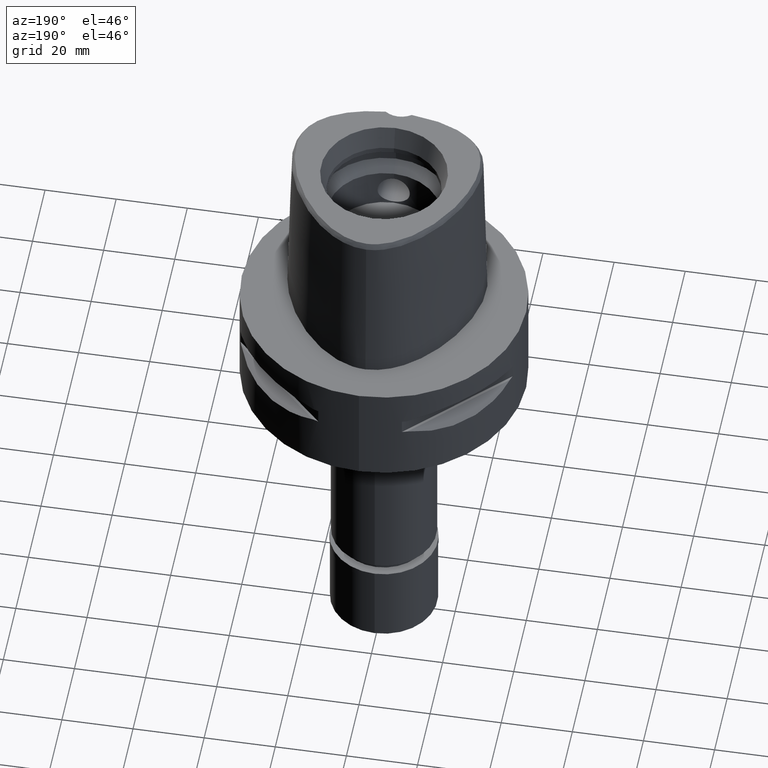
[diagram: clean part render]
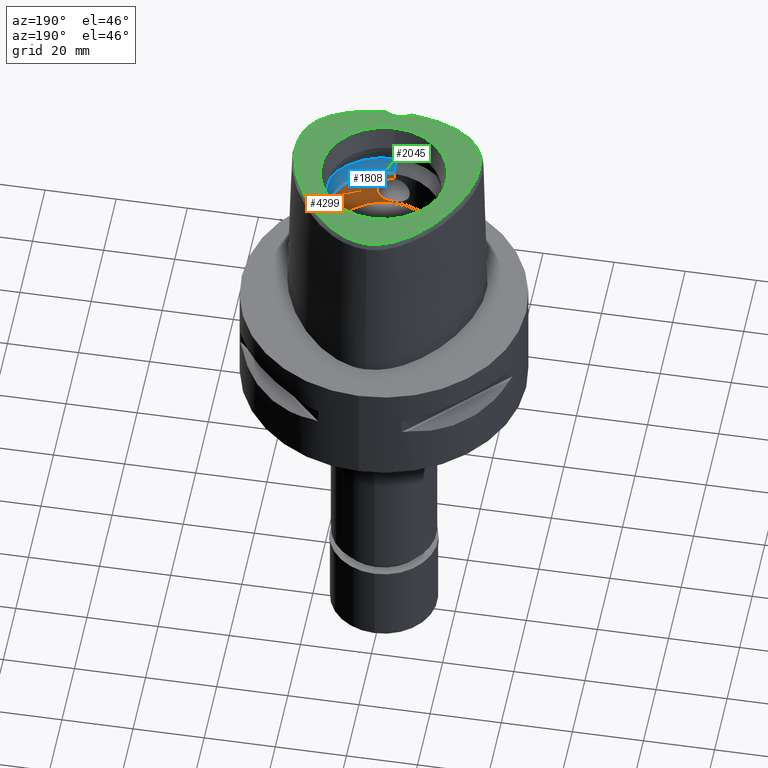
[diagram: same view with three faces highlighted in distinct colors, each labeled with its STEP entity id]
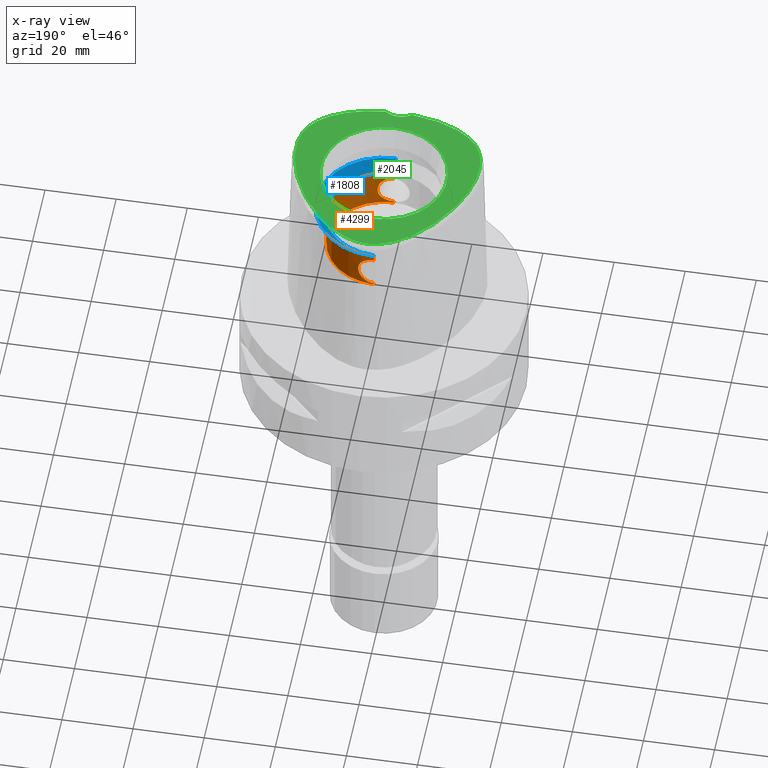
[diagram: x-ray of the same camera — body ghosted, the three highlighted faces saturated]
A machine part, auxiliary view with three faces highlighted in distinct colors.
The next image is the same camera in x-ray (body ghosted, the three faces saturated) — at least one of them is partly hidden behind the body in this view.
Their STEP definitions:

[orange] entity #4299 — the highlighted cylindrical surface (partial cylindrical patch) has radius 16 mm, axis along (0, 0, -1).
#17 = CARTESIAN_POINT ( 'NONE',  ( 4.189656546178186503, 15.44187136844729835, 23.22535852732936590 ) ) ;
#19 = CARTESIAN_POINT ( 'NONE',  ( 3.866437423689760067, -15.52606563446505383, 27.40429148412047056 ) ) ;
#30 = CARTESIAN_POINT ( 'NONE',  ( 3.649470479182351124, 15.57840939008606185, 22.28201629146690976 ) ) ;
#42 = CARTESIAN_POINT ( 'NONE',  ( 2.962143270709701959, 15.72368415002362774, 28.45703030326751914 ) ) ;
#45 = CARTESIAN_POINT ( 'NONE',  ( 1.912207018179929774, -15.88647873231247409, 29.13410031185300042 ) ) ;
#98 = CARTESIAN_POINT ( 'NONE',  ( 1.794211577386909173, -15.89895019350959515, 20.81863176061057530 ) ) ;
#122 = CARTESIAN_POINT ( 'NONE',  ( 3.303400809865709498, -15.65543729917632376, 21.86952368833759053 ) ) ;
#147 = CARTESIAN_POINT ( 'NONE',  ( 1.754045412216836075, -15.90341773696171401, 20.80167885171940156 ) ) ;
#158 = EDGE_CURVE ( 'NONE', #1083, #3416, #4061, .T. ) ;
#168 = CARTESIAN_POINT ( 'NONE',  ( 2.962116243582476383, -15.72368917182755510, 21.54294647201987800 ) ) ;
#173 = VERTEX_POINT ( 'NONE', #2833 ) ;
#194 = CARTESIAN_POINT ( 'NONE',  ( 3.369125265877832565, -15.64144421129965856, 21.94071229641686216 ) ) ;
#289 = CARTESIAN_POINT ( 'NONE',  ( 2.523274598537063707, 15.79903356793057867, 21.21083401355727460 ) ) ;
#297 = LINE ( 'NONE', #3371, #3078 ) ;
#329 = CARTESIAN_POINT ( 'NONE',  ( 4.053985978798844592, 15.47807549748950606, 22.93277328934321346 ) ) ;
#331 = VERTEX_POINT ( 'NONE', #3070 ) ;
#339 = CARTESIAN_POINT ( 'NONE',  ( 0.2782013015967914060, 16.00000000000000711, 20.44999999999999929 ) ) ;
#353 = CARTESIAN_POINT ( 'NONE',  ( 1.159190779532319526, 15.96838977935147241, 29.44422320749352195 ) ) ;
#355 = CARTESIAN_POINT ( 'NONE',  ( 4.442108612069406881, 15.37148708700024358, 25.99587535441274611 ) ) ;
#359 = CARTESIAN_POINT ( 'NONE',  ( 0.2782053161998652713, -16.00000000000000000, 29.55000000000000782 ) ) ;
#378 = CARTESIAN_POINT ( 'NONE',  ( 0.5625441145297881418, 16.00000000000000355, 29.54999999999999716 ) ) ;
#379 = CARTESIAN_POINT ( 'NONE',  ( 4.215499819405168047, 15.43479043457173283, 26.71234694426702916 ) ) ;
#381 = CARTESIAN_POINT ( 'NONE',  ( 3.608925105162051228, -15.58793851878025549, 27.77197051437914155 ) ) ;
#390 = CARTESIAN_POINT ( 'NONE',  ( 1.912179651897611077, 15.88648207706449789, 20.86588705029586777 ) ) ;
#399 = CARTESIAN_POINT ( 'NONE',  ( 0.0000000000000000000, 16.00000000000000000, 20.00000000000000000 ) ) ;
#405 = CARTESIAN_POINT ( 'NONE',  ( 2.541157522327708307, 15.79692219589786539, 28.77425877510762575 ) ) ;
#407 = CARTESIAN_POINT ( 'NONE',  ( 1.713069719687039472, -15.90795114070365734, 29.21519905557675045 ) ) ;
#410 = LINE ( 'NONE', #3538, #1942 ) ;
#415 = CARTESIAN_POINT ( 'NONE',  ( 3.608926498398997484, 15.58793843905590037, 22.22803121313303265 ) ) ;
#428 = CARTESIAN_POINT ( 'NONE',  ( 4.155135374964909367, 15.45121126152381308, 23.14540970916084817 ) ) ;
#431 = CARTESIAN_POINT ( 'NONE',  ( 1.357209790509098291, -15.94226299747448650, 29.34351668574365135 ) ) ;
#435 = EDGE_CURVE ( 'NONE', #4090, #331, #2747, .T. ) ;
#455 = CARTESIAN_POINT ( 'NONE',  ( 3.751169547981506813, -15.55403617229850610, 27.57516546894511578 ) ) ;
#483 = CARTESIAN_POINT ( 'NONE',  ( 4.524610095706539603, -15.34742685073815949, 24.43716217433382454 ) ) ;
#506 = CARTESIAN_POINT ( 'NONE',  ( 4.215492713729362961, -15.43479194653274078, 23.28763556495989206 ) ) ;
#528 = CARTESIAN_POINT ( 'NONE',  ( 2.541124487639813800, -15.79692748425804893, 21.22571898328422080 ) ) ;
#556 = CARTESIAN_POINT ( 'NONE',  ( 4.161423080045494771, -15.44954601841345898, 23.15522980018027965 ) ) ;
#578 = CARTESIAN_POINT ( 'NONE',  ( 1.997936047060144382, -15.87476822621945338, 20.91148056798598276 ) ) ;
#687 = EDGE_CURVE ( 'NONE', #3438, #173, #297, .T. ) ;
#737 = CARTESIAN_POINT ( 'NONE',  ( 4.161428030123373922, 15.44954512553541726, 26.84475952259135667 ) ) ;
#740 = CARTESIAN_POINT ( 'NONE',  ( 3.079092618712816254, -15.70089896345050740, 28.35045023974367595 ) ) ;
#761 = CARTESIAN_POINT ( 'NONE',  ( 0.0000000000000000000, -16.00000000000000000, 29.55000000000000071 ) ) ;
#762 = CARTESIAN_POINT ( 'NONE',  ( 3.744577833560327029, 15.55572763828316774, 27.58647462658780825 ) ) ;
#766 = CARTESIAN_POINT ( 'NONE',  ( 3.770760734124586566, -15.54928465812493776, 27.54634354338072910 ) ) ;
#786 = CARTESIAN_POINT ( 'NONE',  ( 1.899667195843307788, 15.88671723722100104, 29.13461902235320622 ) ) ;
#815 = CARTESIAN_POINT ( 'NONE',  ( 4.343082254756093441, 15.39956143003375644, 26.35862238567884219 ) ) ;
#817 = CARTESIAN_POINT ( 'NONE',  ( 0.5640746610351677903, -15.99230173299660152, 29.52441511484518699 ) ) ;
#837 = CARTESIAN_POINT ( 'NONE',  ( 4.199165497935947400, 15.43928784429265910, 23.24797072505772277 ) ) ;
#840 = CARTESIAN_POINT ( 'NONE',  ( 3.468490237217007888, -15.62005317892407419, 27.94868093617383309 ) ) ;
#860 = CARTESIAN_POINT ( 'NONE',  ( 2.785122922858078720, -15.75567992719716059, 21.40120808624280357 ) ) ;
#892 = CARTESIAN_POINT ( 'NONE',  ( 3.999411058300898603, -15.49220513063565896, 22.82912080816996081 ) ) ;
#908 = CARTESIAN_POINT ( 'NONE',  ( 0.0000000000000000000, 0.0000000000000000000, 31.50000000000000000 ) ) ;
#913 = CARTESIAN_POINT ( 'NONE',  ( 2.652222037722123726, -15.77860540324636851, 21.30280711229460522 ) ) ;
#920 = B_SPLINE_CURVE_WITH_KNOTS ( 'NONE', 3,
 ( #1552, #339, #1915, #1575, #3491, #1155, #5074, #3516, #1515, #3161, #2362, #4691, #3934, #390, #1131, #289, #1969, #4740, #1179, #2335, #2765, #4350, #1865, #3440, #5030, #1469, #3058, #415, #30, #1599, #3964, #1997, #3566, #3898, #3924, #2731, #4390, #1959, #2403, #329, #1536, #2323, #428, #4673, #17, #3149, #837, #1589, #1930, #3126, #4317, #2784, #1119, #1224, #4706, #355, #2379, #815, #1984, #2808, #3534, #3876, #4293, #379, #737, #4367, #3955, #2755, #3174, #1143, #3556, #3506, #5091, #3976, #1905, #762, #2352, #3095, #2011, #5119, #3581, #1194, #42, #3482, #1565, #4728, #1167, #5065, #1508, #2708, #405, #4340, #4753, #1617, #3198, #4784, #786, #1588, #2010, #2424, #5090, #1247, #353, #378, #1563 ),
 .UNSPECIFIED., .F., .F.,
 ( 4, 2, 2, 1, 1, 1, 1, 2, 2, 2, 2, 2, 1, 1, 2, 2, 2, 2, 1, 1, 1, 1, 2, 2, 2, 2, 1, 1, 2, 2, 2, 2, 2, 2, 2, 1, 1, 1, 2, 2, 2, 2, 1, 1, 1, 2, 2, 2, 2, 2, 2, 2, 1, 1, 1, 2, 2, 2, 2, 1, 1, 2, 2, 4 ),
 ( 0.0000000000000000000, 0.06249999999996654065, 0.09374999999994973465, 0.1093749999999412692, 0.1171874999999370781, 0.1210937499999349826, 0.1230468749999340111, 0.1240234374999335532, 0.1249999999999330813, 0.1874999999999101552, 0.2187499999998987477, 0.2343749999998929745, 0.2421874999998901712, 0.2460937499998887001, 0.2480468749998880063, 0.2499999999998872569, 0.2812499999998750999, 0.2968749999998689937, 0.3046874999998659961, 0.3085937499998644973, 0.3105468749998637756, 0.3115234374998638867, 0.3120117187498644418, 0.3124999999998649969, 0.3437499999998670508, 0.3593749999998683275, 0.3671874999998693823, 0.3710937499998695488, 0.3730468749998696043, 0.3749999999998696598, 0.4374999999998667732, 0.4687499999998652744, 0.4999999999998638867, 0.5624999999998610001, 0.5937499999998595568, 0.6093749999998592237, 0.6171874999998593347, 0.6210937499998597788, 0.6230468749998600009, 0.6249999999998601119, 0.6562499999998661071, 0.6718749999998686606, 0.6796874999998697708, 0.6835937499998703260, 0.6855468749998705480, 0.6865234374998711031, 0.6874999999998715472, 0.7187499999998830935, 0.7343749999998886446, 0.7499999999998940847, 0.7812499999999055200, 0.7968749999999111822, 0.8046874999999141798, 0.8085937499999159561, 0.8105468749999169553, 0.8115234374999170663, 0.8124999999999171774, 0.8437499999999279465, 0.8593749999999333866, 0.8671874999999360512, 0.8710937499999372724, 0.8730468749999379385, 0.8749999999999387157, 1.000000000000000000 ),
 .UNSPECIFIED. ) ;
#935 = CARTESIAN_POINT ( 'NONE',  ( 3.873230888526653093, -15.52414120514571039, 22.61183188858442961 ) ) ;
#961 = CARTESIAN_POINT ( 'NONE',  ( 0.0000000000000000000, 0.0000000000000000000, 50.39999999999999858 ) ) ;
#962 = CARTESIAN_POINT ( 'NONE',  ( 4.196349607670623705, -15.44005382475934596, 26.75875646608825420 ) ) ;
#987 = EDGE_CURVE ( 'NONE', #4090, #2000, #1899, .T. ) ;
#1003 = ORIENTED_EDGE ( 'NONE', *, *, #4575, .T. ) ;
#1024 = ORIENTED_EDGE ( 'NONE', *, *, #3526, .T. ) ;
#1083 = VERTEX_POINT ( 'NONE', #2749 ) ;
#1119 = CARTESIAN_POINT ( 'NONE',  ( 4.550015144519940158, 15.33941179770986984, 24.86210157583568048 ) ) ;
#1124 = CARTESIAN_POINT ( 'NONE',  ( 3.762791444921798512, -15.55121822179532565, 27.55811620603815015 ) ) ;
#1131 = CARTESIAN_POINT ( 'NONE',  ( 2.143374776122538350, 15.85669179824992447, 20.97542314536930874 ) ) ;
#1143 = CARTESIAN_POINT ( 'NONE',  ( 3.873231694624204025, 15.52414087639344409, 27.38816680141201587 ) ) ;
#1146 = CARTESIAN_POINT ( 'NONE',  ( 3.772428649167869352, -15.54887991101975686, 27.54387279360349794 ) ) ;
#1152 = ORIENTED_EDGE ( 'NONE', *, *, #1650, .T. ) ;
#1155 = CARTESIAN_POINT ( 'NONE',  ( 1.357188221007183060, 15.94226488405047704, 20.65647659800648483 ) ) ;
#1167 = CARTESIAN_POINT ( 'NONE',  ( 2.615076321123176673, 15.78484770968860396, 28.72361617527827704 ) ) ;
#1171 = CARTESIAN_POINT ( 'NONE',  ( 3.138951541086886454, -15.68906150299001823, 28.29400456614028059 ) ) ;
#1179 = CARTESIAN_POINT ( 'NONE',  ( 2.925371362859918722, 15.73002412702591890, 21.51389598532850655 ) ) ;
#1194 = CARTESIAN_POINT ( 'NONE',  ( 3.094079820521395519, 15.69862372471519940, 28.34193422348686298 ) ) ;
#1197 = CARTESIAN_POINT ( 'NONE',  ( 3.189316939968529052, -15.67891379177026323, 28.24514002014117864 ) ) ;
#1224 = CARTESIAN_POINT ( 'NONE',  ( 4.549969628939022570, 15.33940615444025646, 25.27729323598638089 ) ) ;
#1227 = CARTESIAN_POINT ( 'NONE',  ( 0.0000000000000000000, -16.00000000000000000, 29.55000000000000071 ) ) ;
#1247 = CARTESIAN_POINT ( 'NONE',  ( 1.747108114875768781, 15.90418151865913643, 29.20121518394913096 ) ) ;
#1251 = CARTESIAN_POINT ( 'NONE',  ( 0.0000000000000000000, -16.00000000000000000, 20.44999999999999929 ) ) ;
#1275 = CARTESIAN_POINT ( 'NONE',  ( 4.308072446258583099, -15.40933950963892940, 23.53257834518434777 ) ) ;
#1301 = CARTESIAN_POINT ( 'NONE',  ( 4.411054695673551684, -15.38060105774562025, 26.15499689250167492 ) ) ;
#1319 = DIRECTION ( 'NONE',  ( 0.0000000000000000000, 0.0000000000000000000, -1.000000000000000000 ) ) ;
#1321 = CARTESIAN_POINT ( 'NONE',  ( 3.903692605965634499, -15.51651355511180519, 22.66222515935153226 ) ) ;
#1346 = CARTESIAN_POINT ( 'NONE',  ( 4.189654095397577827, -15.44187240023541641, 26.77464726008378548 ) ) ;
#1469 = CARTESIAN_POINT ( 'NONE',  ( 3.349830735756511579, 15.64617010507494577, 21.91353457420719053 ) ) ;
#1508 = CARTESIAN_POINT ( 'NONE',  ( 2.554866899785636303, 15.79470913535774024, 28.76500105321615663 ) ) ;
#1515 = CARTESIAN_POINT ( 'NONE',  ( 1.653572333732379107, 15.91425433170309489, 20.76103257772965094 ) ) ;
#1536 = CARTESIAN_POINT ( 'NONE',  ( 4.086977290098439575, 15.46939710896591436, 22.99892130838378179 ) ) ;
#1552 = CARTESIAN_POINT ( 'NONE',  ( 0.0000000000000000000, 16.00000000000000000, 20.44999999999999929 ) ) ;
#1563 = CARTESIAN_POINT ( 'NONE',  ( 0.0000000000000000000, 16.00000000000000000, 29.55000000000000071 ) ) ;
#1565 = CARTESIAN_POINT ( 'NONE',  ( 2.729597290681040622, 15.76540486867777524, 28.64086068374010807 ) ) ;
#1569 = CARTESIAN_POINT ( 'NONE',  ( 4.053979410292590124, -15.47807741151256522, 27.06723962286901397 ) ) ;
#1575 = CARTESIAN_POINT ( 'NONE',  ( 0.9961926526049751374, 15.96920793816025608, 20.55797314716945934 ) ) ;
#1588 = CARTESIAN_POINT ( 'NONE',  ( 1.850775727679746518, 15.89250999642956330, 29.15683968798263948 ) ) ;
#1589 = CARTESIAN_POINT ( 'NONE',  ( 4.323958204503244751, 15.40531264616215168, 23.54890256027089279 ) ) ;
#1592 = CARTESIAN_POINT ( 'NONE',  ( 4.086971507871239417, -15.46939889150121239, 27.00109056301135269 ) ) ;
#1599 = CARTESIAN_POINT ( 'NONE',  ( 3.702056838117071980, 15.56588022015961137, 22.35459497960722075 ) ) ;
#1606 = EDGE_CURVE ( 'NONE', #2000, #3438, #920, .T. ) ;
#1617 = CARTESIAN_POINT ( 'NONE',  ( 2.264380261550365425, 15.83946175093809927, 28.94941747298992141 ) ) ;
#1648 = CARTESIAN_POINT ( 'NONE',  ( 1.140783603711200023, -15.95958409823213664, 29.40723668852184858 ) ) ;
#1650 = EDGE_CURVE ( 'NONE', #1083, #1869, #3580, .T. ) ;
#1672 = CARTESIAN_POINT ( 'NONE',  ( 4.179510492302597413, -15.44462419898545846, 26.79853223436298748 ) ) ;
#1694 = CARTESIAN_POINT ( 'NONE',  ( 4.155131648642695019, -15.45121261148693925, 26.85459867571130843 ) ) ;
#1722 = CARTESIAN_POINT ( 'NONE',  ( 4.516447097098074792, -15.34971033308157828, 25.57020538856895797 ) ) ;
#1746 = CARTESIAN_POINT ( 'NONE',  ( 4.550016828128999435, -15.33941121579257860, 25.13784116170331728 ) ) ;
#1865 = CARTESIAN_POINT ( 'NONE',  ( 3.164574645498917871, 15.68391565187350345, 21.73073258343147174 ) ) ;
#1869 = VERTEX_POINT ( 'NONE', #3266 ) ;
#1878 = CYLINDRICAL_SURFACE ( 'NONE', #4109, 16.00000000000000000 ) ;
#1899 = LINE ( 'NONE', #399, #3306 ) ;
#1905 = CARTESIAN_POINT ( 'NONE',  ( 3.799106346153691582, 15.54240362262474306, 27.50385701844249908 ) ) ;
#1915 = CARTESIAN_POINT ( 'NONE',  ( 0.5640661506413194859, 15.99230198454006491, 20.47558414519757974 ) ) ;
#1930 = CARTESIAN_POINT ( 'NONE',  ( 4.411048936297221168, 15.38060245814164340, 23.84498371928194516 ) ) ;
#1933 = CARTESIAN_POINT ( 'NONE',  ( 1.698278889583634488, -15.90953596541144144, 29.22118135015105622 ) ) ;
#1942 = VECTOR ( 'NONE', #3928, 1000.000000000000000 ) ;
#1959 = CARTESIAN_POINT ( 'NONE',  ( 3.866446441693441649, 15.52606353177364440, 22.59572289399530476 ) ) ;
#1962 = CARTESIAN_POINT ( 'NONE',  ( 3.768400076263710208, -15.54985749061531308, 27.54983819164340630 ) ) ;
#1969 = CARTESIAN_POINT ( 'NONE',  ( 2.655282872106861092, 15.77765202247453580, 21.30120896271615294 ) ) ;
#1984 = CARTESIAN_POINT ( 'NONE',  ( 4.308080894153779816, 15.40933754407856426, 26.46739704395423232 ) ) ;
#1988 = CARTESIAN_POINT ( 'NONE',  ( 2.925390830838976886, -15.73002061715234667, 28.48608766338562148 ) ) ;
#1997 = CARTESIAN_POINT ( 'NONE',  ( 3.751177014894234496, 15.55403459786074549, 22.42484540323997066 ) ) ;
#2000 = VERTEX_POINT ( 'NONE', #4412 ) ;
#2010 = CARTESIAN_POINT ( 'NONE',  ( 1.794241281059349546, 15.89894680430803042, 29.18135549407481477 ) ) ;
#2011 = CARTESIAN_POINT ( 'NONE',  ( 3.484927592812291142, 15.61614509033863207, 27.92669190149619141 ) ) ;
#2014 = CARTESIAN_POINT ( 'NONE',  ( 2.655305071339811196, -15.77764841890501302, 28.69877505775702886 ) ) ;
#2036 = CARTESIAN_POINT ( 'NONE',  ( 1.707207874312850260, -15.90858119987487918, 29.21757803147168886 ) ) ;
#2061 = CARTESIAN_POINT ( 'NONE',  ( 3.744574952021170411, -15.55572859468818514, 22.41352109307068119 ) ) ;
#2084 = CARTESIAN_POINT ( 'NONE',  ( 4.261969212491526271, -15.42206096146517957, 23.40603321981944518 ) ) ;
#2105 = CARTESIAN_POINT ( 'NONE',  ( 0.0000000000000000000, 0.0000000000000000000, 20.00000000000000000 ) ) ;
#2108 = CARTESIAN_POINT ( 'NONE',  ( 2.399866741051127406, -15.81961133751317838, 21.13090355243559770 ) ) ;
#2138 = CARTESIAN_POINT ( 'NONE',  ( 2.615044023700152653, -15.78485302017057457, 21.27636114073422036 ) ) ;
#2159 = DIRECTION ( 'NONE',  ( 0.0000000000000000000, -1.000000000000000000, 0.0000000000000000000 ) ) ;
#2160 = CARTESIAN_POINT ( 'NONE',  ( 1.850745930704452258, -15.89251350342059688, 20.84314704806012486 ) ) ;
#2228 = EDGE_LOOP ( 'NONE', ( #4843, #4192, #1024, #4611, #1152, #1003, #2649, #3790 ) ) ;
#2323 = CARTESIAN_POINT ( 'NONE',  ( 4.132994277957470430, 15.45714554145822817, 23.09680318323983172 ) ) ;
#2335 = CARTESIAN_POINT ( 'NONE',  ( 3.027778349938317515, 15.71074476490952421, 21.60336740777249176 ) ) ;
#2352 = CARTESIAN_POINT ( 'NONE',  ( 3.674615227646960136, 15.57277297764961865, 27.68737911627052029 ) ) ;
#2356 = CARTESIAN_POINT ( 'NONE',  ( 3.947479188499233071, -15.50564484584519143, 27.26777929395895583 ) ) ;
#2362 = CARTESIAN_POINT ( 'NONE',  ( 1.698251660413096387, 15.90953892135421555, 20.77880769513062731 ) ) ;
#2379 = CARTESIAN_POINT ( 'NONE',  ( 4.407204992253693554, 15.38151343653829706, 26.14101585880031919 ) ) ;
#2403 = CARTESIAN_POINT ( 'NONE',  ( 3.947487621378700684, 15.50564269361566616, 22.73223549783844177 ) ) ;
#2408 = CARTESIAN_POINT ( 'NONE',  ( 0.0000000000000000000, 16.00000000000000000, 29.55000000000000071 ) ) ;
#2424 = CARTESIAN_POINT ( 'NONE',  ( 1.770126022856088888, 15.90163656242777535, 29.19156648951770450 ) ) ;
#2451 = CARTESIAN_POINT ( 'NONE',  ( 3.816844945110818177, -15.53805976672804512, 22.52323341780981636 ) ) ;
#2481 = CARTESIAN_POINT ( 'NONE',  ( 3.835937387388080655, -15.53336594391269898, 22.55279966808718228 ) ) ;
#2502 = CARTESIAN_POINT ( 'NONE',  ( 4.543547489458577893, -15.34147157909059800, 25.28214318541009931 ) ) ;
#2521 = CARTESIAN_POINT ( 'NONE',  ( 2.574432664288141215, -15.79152938141080043, 21.24831721102748006 ) ) ;
#2549 = DIRECTION ( 'NONE',  ( 0.0000000000000000000, 0.0000000000000000000, -1.000000000000000000 ) ) ;
#2550 = CARTESIAN_POINT ( 'NONE',  ( 2.064158054777731177, -15.86631005045099840, 20.94445373429030255 ) ) ;
#2649 = ORIENTED_EDGE ( 'NONE', *, *, #687, .F. ) ;
#2704 = CIRCLE ( 'NONE', #3123, 16.00000000000000000 ) ;
#2708 = CARTESIAN_POINT ( 'NONE',  ( 2.546620738279579577, 15.79604134675055604, 28.77057471350508777 ) ) ;
#2712 = CARTESIAN_POINT ( 'NONE',  ( 2.523297973548863204, -15.79902995607773697, 28.78915039858805613 ) ) ;
#2731 = CARTESIAN_POINT ( 'NONE',  ( 3.772333376022444451, 15.54890324115859279, 22.45598686023981116 ) ) ;
#2733 = CARTESIAN_POINT ( 'NONE',  ( 1.465311484534525643, -15.93288073456408682, 29.30877354142927160 ) ) ;
#2747 = CIRCLE ( 'NONE', #3167, 16.00000000000000000 ) ;
#2749 = CARTESIAN_POINT ( 'NONE',  ( 0.0000000000000000000, -16.00000000000000000, 29.55000000000000071 ) ) ;
#2755 = CARTESIAN_POINT ( 'NONE',  ( 3.962677025106232431, 15.50163036113120718, 27.23734653533288252 ) ) ;
#2756 = CARTESIAN_POINT ( 'NONE',  ( 0.0000000000000000000, 16.00000000000000000, 20.00000000000000000 ) ) ;
#2765 = CARTESIAN_POINT ( 'NONE',  ( 3.079074847965816097, 15.70090238366231361, 21.64953342140152870 ) ) ;
#2784 = CARTESIAN_POINT ( 'NONE',  ( 4.543544356695304209, 15.34147259334892155, 24.71780853530669120 ) ) ;
#2808 = CARTESIAN_POINT ( 'NONE',  ( 4.261977044492797795, 15.42205921573411409, 26.59394588462530962 ) ) ;
#2810 = CARTESIAN_POINT ( 'NONE',  ( 3.027796695002154870, -15.71074131266799512, 28.39661623549461922 ) ) ;
#2816 = CARTESIAN_POINT ( 'NONE',  ( 1.653598826364421015, -15.91425152984297497, 29.23895709059885206 ) ) ;
#2833 = CARTESIAN_POINT ( 'NONE',  ( 0.0000000000000000000, 16.00000000000000000, 31.50000000000000000 ) ) ;
#2862 = CARTESIAN_POINT ( 'NONE',  ( 3.536504641778518199, -15.60453110585897107, 22.13622431585409345 ) ) ;
#2890 = CARTESIAN_POINT ( 'NONE',  ( 3.484915605471456068, -15.61614794292134967, 22.07329373984800824 ) ) ;
#2911 = CARTESIAN_POINT ( 'NONE',  ( 4.549966242427505136, -15.33940732230484905, 24.72265458136594418 ) ) ;
#2934 = CARTESIAN_POINT ( 'NONE',  ( 3.094055331838374112, -15.69862851482234767, 21.65804293900622568 ) ) ;
#3058 = CARTESIAN_POINT ( 'NONE',  ( 3.468485652279672316, 15.62005439302203946, 22.05131334578006985 ) ) ;
#3069 = FACE_OUTER_BOUND ( 'NONE', #2228, .T. ) ;
#3070 = CARTESIAN_POINT ( 'NONE',  ( 0.0000000000000000000, -16.00000000000000000, 20.00000000000000000 ) ) ;
#3078 = VECTOR ( 'NONE', #4234, 1000.000000000000000 ) ;
#3095 = CARTESIAN_POINT ( 'NONE',  ( 3.536514746485360128, 15.60452860933670216, 27.86376314389772446 ) ) ;
#3123 = AXIS2_PLACEMENT_3D ( 'NONE', #908, #4025, #4051 ) ;
#3126 = CARTESIAN_POINT ( 'NONE',  ( 4.495809259330163066, 15.35589036408810060, 24.28415928063268225 ) ) ;
#3130 = CARTESIAN_POINT ( 'NONE',  ( 3.702051490301241365, -15.56588124764121339, 27.64541248909067761 ) ) ;
#3149 = CARTESIAN_POINT ( 'NONE',  ( 4.196351796721544680, 15.44005286165201873, 23.24124875846293392 ) ) ;
#3161 = CARTESIAN_POINT ( 'NONE',  ( 1.684854944397863541, 15.91096538466819155, 20.77342622897208813 ) ) ;
#3167 = AXIS2_PLACEMENT_3D ( 'NONE', #2105, #1319, #4054 ) ;
#3174 = CARTESIAN_POINT ( 'NONE',  ( 3.903693436951860996, 15.51651326497629135, 27.33777345596545771 ) ) ;
#3176 = CARTESIAN_POINT ( 'NONE',  ( 4.132989838975941410, -15.45714704863348388, 26.90320647271984811 ) ) ;
#3198 = CARTESIAN_POINT ( 'NONE',  ( 2.064188499578045732, 15.86630605860837129, 29.05553078208316009 ) ) ;
#3201 = CARTESIAN_POINT ( 'NONE',  ( 3.181679688140317541, -15.68046259706548717, 28.25262301660179176 ) ) ;
#3223 = CARTESIAN_POINT ( 'NONE',  ( 1.747078318712492528, -15.90418482861359273, 20.79877242566698214 ) ) ;
#3248 = CARTESIAN_POINT ( 'NONE',  ( 4.343073568135321416, -15.39956351927398259, 23.64134995180632259 ) ) ;
#3266 = CARTESIAN_POINT ( 'NONE',  ( 0.0000000000000000000, -16.00000000000000000, 31.50000000000000000 ) ) ;
#3271 = CARTESIAN_POINT ( 'NONE',  ( 4.407196174932940913, -15.38151568681131565, 23.85895058721111894 ) ) ;
#3295 = CARTESIAN_POINT ( 'NONE',  ( 1.159171110711336050, -15.96839087129520429, 20.55577344022520236 ) ) ;
#3306 = VECTOR ( 'NONE', #3575, 1000.000000000000000 ) ;
#3317 = CARTESIAN_POINT ( 'NONE',  ( 4.219629281423143752, -15.43366229842522408, 23.29784757614652690 ) ) ;
#3371 = CARTESIAN_POINT ( 'NONE',  ( 0.0000000000000000000, 16.00000000000000000, 29.55000000000000071 ) ) ;
#3416 = VERTEX_POINT ( 'NONE', #3829 ) ;
#3438 = VERTEX_POINT ( 'NONE', #2408 ) ;
#3440 = CARTESIAN_POINT ( 'NONE',  ( 3.181663106844978994, 15.68046594130023763, 21.74736076354710335 ) ) ;
#3482 = CARTESIAN_POINT ( 'NONE',  ( 2.785152895743186363, 15.75567470001112547, 28.59876870134960569 ) ) ;
#3491 = CARTESIAN_POINT ( 'NONE',  ( 1.140765637915484909, 15.95958541883533321, 20.59275875371281828 ) ) ;
#3506 = CARTESIAN_POINT ( 'NONE',  ( 3.816846021525992949, 15.53805930982571581, 27.47676492289609484 ) ) ;
#3508 = CARTESIAN_POINT ( 'NONE',  ( 3.772324975477775677, -15.54890506713475240, 27.54402559623897773 ) ) ;
#3516 = CARTESIAN_POINT ( 'NONE',  ( 1.590917537191384623, 15.92067435631518535, 20.73689644766570694 ) ) ;
#3526 = EDGE_CURVE ( 'NONE', #331, #3416, #410, .T. ) ;
#3534 = CARTESIAN_POINT ( 'NONE',  ( 4.237594218959623404, 15.42874910287936707, 26.65709153774051998 ) ) ;
#3538 = CARTESIAN_POINT ( 'NONE',  ( 0.0000000000000000000, -16.00000000000000000, 20.00000000000000000 ) ) ;
#3556 = CARTESIAN_POINT ( 'NONE',  ( 3.835938342235793996, 15.53336553549570809, 27.44719883371852731 ) ) ;
#3559 = CARTESIAN_POINT ( 'NONE',  ( 3.349840423472021378, -15.64616789800078678, 28.08645433688232629 ) ) ;
#3566 = CARTESIAN_POINT ( 'NONE',  ( 3.762799422814133710, 15.55121651038781039, 22.44189552775758756 ) ) ;
#3575 = DIRECTION ( 'NONE',  ( 0.0000000000000000000, 0.0000000000000000000, 1.000000000000000000 ) ) ;
#3580 = LINE ( 'NONE', #761, #4102 ) ;
#3581 = CARTESIAN_POINT ( 'NONE',  ( 3.303420936129999763, 15.65543299877743344, 28.13045502941756126 ) ) ;
#3583 = CARTESIAN_POINT ( 'NONE',  ( 1.684881952930011639, -15.91096247533712749, 29.22656300514560357 ) ) ;
#3636 = CARTESIAN_POINT ( 'NONE',  ( 2.264348912107892797, -15.83946624511378687, 21.05056460264274421 ) ) ;
#3662 = CARTESIAN_POINT ( 'NONE',  ( 3.799105167258458149, -15.54240411986702242, 22.49614119270920654 ) ) ;
#3688 = CARTESIAN_POINT ( 'NONE',  ( 1.899637281590977667, -15.88672085085620544, 20.86536723554385375 ) ) ;
#3713 = CARTESIAN_POINT ( 'NONE',  ( 2.546587751989866977, -15.79604663802985165, 21.22940300797883495 ) ) ;
#3736 = CARTESIAN_POINT ( 'NONE',  ( 1.770096349569764582, -15.90163990256857041, 20.80842097945669167 ) ) ;
#3790 = ORIENTED_EDGE ( 'NONE', *, *, #1606, .F. ) ;
#3829 = CARTESIAN_POINT ( 'NONE',  ( 0.0000000000000000000, -16.00000000000000000, 20.44999999999999929 ) ) ;
#3876 = CARTESIAN_POINT ( 'NONE',  ( 4.226857831073056460, 15.43168670836678658, 26.68412203476030697 ) ) ;
#3898 = CARTESIAN_POINT ( 'NONE',  ( 3.768408302387250330, 15.54985571206031914, 22.45017396549928890 ) ) ;
#3924 = CARTESIAN_POINT ( 'NONE',  ( 3.770769065103096285, 15.54928285107902575, 22.45366879358027390 ) ) ;
#3926 = CARTESIAN_POINT ( 'NONE',  ( 1.590942994025086099, -15.92067176423838148, 29.26309406356421405 ) ) ;
#3928 = DIRECTION ( 'NONE',  ( 0.0000000000000000000, 0.0000000000000000000, 1.000000000000000000 ) ) ;
#3934 = CARTESIAN_POINT ( 'NONE',  ( 1.713042194257537343, 15.90795415412787506, 20.78478975811450624 ) ) ;
#3955 = CARTESIAN_POINT ( 'NONE',  ( 3.999412507078544010, 15.49220485055346153, 27.17087656896083558 ) ) ;
#3958 = CARTESIAN_POINT ( 'NONE',  ( 0.9962082174139773594, -15.96920693198639363, 29.44202344390732051 ) ) ;
#3964 = CARTESIAN_POINT ( 'NONE',  ( 3.726289610588630286, 15.56005673607846163, 22.38878970849017591 ) ) ;
#3975 = DIRECTION ( 'NONE',  ( 0.0000000000000000000, 0.0000000000000000000, 1.000000000000000000 ) ) ;
#3976 = CARTESIAN_POINT ( 'NONE',  ( 3.803026785374167495, 15.54144497151958149, 27.49790168338665808 ) ) ;
#4003 = CARTESIAN_POINT ( 'NONE',  ( 3.649467371547878702, -15.57840986847751275, 27.71798782210699486 ) ) ;
#4025 = DIRECTION ( 'NONE',  ( 0.0000000000000000000, 0.0000000000000000000, 1.000000000000000000 ) ) ;
#4033 = CARTESIAN_POINT ( 'NONE',  ( 2.729566477207186814, -15.76541014063066370, 21.35911620734471938 ) ) ;
#4051 = DIRECTION ( 'NONE',  ( 0.0000000000000000000, -1.000000000000000000, 0.0000000000000000000 ) ) ;
#4054 = DIRECTION ( 'NONE',  ( 0.0000000000000000000, 1.000000000000000000, 0.0000000000000000000 ) ) ;
#4057 = CARTESIAN_POINT ( 'NONE',  ( 4.199163403025498731, -15.43928878248936520, 26.75203429825759116 ) ) ;
#4061 = B_SPLINE_CURVE_WITH_KNOTS ( 'NONE', 3,
 ( #1227, #359, #817, #3958, #1648, #431, #2733, #3926, #2816, #3583, #1933, #2036, #407, #45, #4731, #2712, #2014, #4677, #1988, #2810, #740, #1171, #5095, #3201, #1197, #3559, #840, #381, #4003, #3130, #4709, #455, #1124, #1962, #766, #3508, #1146, #19, #2356, #1569, #1592, #3176, #1694, #1672, #1346, #962, #4057, #4880, #1301, #4468, #1722, #2502, #1746, #2911, #483, #4492, #3271, #3248, #1275, #2084, #4081, #4830, #3317, #506, #556, #4129, #892, #4104, #1321, #935, #2481, #2451, #4858, #4416, #3662, #2061, #4905, #2862, #2890, #194, #122, #2934, #168, #860, #4033, #913, #2138, #2521, #4444, #3713, #528, #4516, #2108, #3636, #2550, #578, #3688, #2160, #98, #3736, #147, #3223, #3295, #4807, #1251 ),
 .UNSPECIFIED., .F., .F.,
 ( 4, 2, 2, 1, 1, 1, 1, 2, 2, 2, 2, 2, 1, 1, 2, 2, 2, 2, 1, 1, 1, 1, 2, 2, 2, 2, 1, 1, 2, 2, 2, 2, 2, 2, 2, 1, 1, 1, 2, 2, 2, 2, 1, 1, 1, 2, 2, 2, 2, 2, 2, 2, 1, 1, 1, 2, 2, 2, 2, 1, 1, 2, 2, 4 ),
 ( 0.0000000000000000000, 0.06249999999998553935, 0.09374999999997830902, 0.1093749999999747702, 0.1171874999999731326, 0.1210937499999723138, 0.1230468749999719252, 0.1240234374999718420, 0.1249999999999717726, 0.1874999999999729383, 0.2187499999999733546, 0.2343749999999735489, 0.2421874999999736322, 0.2460937499999735212, 0.2480468749999735767, 0.2499999999999736322, 0.2812499999999749645, 0.2968749999999755751, 0.3046874999999758526, 0.3085937499999756306, 0.3105468749999750200, 0.3115234374999746869, 0.3120117187499745759, 0.3124999999999744094, 0.3437499999999641398, 0.3593749999999593103, 0.3671874999999569233, 0.3710937499999560352, 0.3730468749999555356, 0.3749999999999550360, 0.4374999999999473754, 0.4687499999999439337, 0.4999999999999404920, 0.5624999999999343858, 0.5937499999999309441, 0.6093749999999291678, 0.6171874999999282796, 0.6210937499999281686, 0.6230468749999281686, 0.6249999999999280575, 0.6562499999999231726, 0.6718749999999207301, 0.6796874999999198419, 0.6835937499999192868, 0.6855468749999190647, 0.6865234374999192868, 0.6874999999999195088, 0.7187499999999326095, 0.7343749999999394928, 0.7499999999999462652, 0.7812499999999594769, 0.7968749999999658051, 0.8046874999999691358, 0.8085937499999708011, 0.8105468749999713562, 0.8115234374999715783, 0.8124999999999718003, 0.8437499999999801270, 0.8593749999999841238, 0.8671874999999863443, 0.8710937499999874545, 0.8730468749999878986, 0.8749999999999882316, 1.000000000000000000 ),
 .UNSPECIFIED. ) ;
#4081 = CARTESIAN_POINT ( 'NONE',  ( 4.237586783299133408, -15.42875071981175417, 23.34288945883876565 ) ) ;
#4090 = VERTEX_POINT ( 'NONE', #2756 ) ;
#4102 = VECTOR ( 'NONE', #3975, 1000.000000000000000 ) ;
#4104 = CARTESIAN_POINT ( 'NONE',  ( 3.962675966005470674, -15.50163061358961336, 22.76265160106846253 ) ) ;
#4109 = AXIS2_PLACEMENT_3D ( 'NONE', #961, #2549, #2159 ) ;
#4129 = CARTESIAN_POINT ( 'NONE',  ( 4.102395667157279213, -15.46541811595632865, 23.02645727048795266 ) ) ;
#4192 = ORIENTED_EDGE ( 'NONE', *, *, #435, .T. ) ;
#4234 = DIRECTION ( 'NONE',  ( 0.0000000000000000000, 0.0000000000000000000, 1.000000000000000000 ) ) ;
#4293 = CARTESIAN_POINT ( 'NONE',  ( 4.219636397351836266, 15.43366078113542628, 26.70213478497222326 ) ) ;
#4299 = ADVANCED_FACE ( 'NONE', ( #3069 ), #1878, .F. ) ;
#4317 = CARTESIAN_POINT ( 'NONE',  ( 4.516441961319169529, 15.34971186406646382, 24.42975500524864785 ) ) ;
#4340 = CARTESIAN_POINT ( 'NONE',  ( 2.539990947862211357, 15.79711040860235371, 28.77504597664269781 ) ) ;
#4350 = CARTESIAN_POINT ( 'NONE',  ( 3.138934459963695467, 15.68906488020975054, 21.70597915485673823 ) ) ;
#4367 = CARTESIAN_POINT ( 'NONE',  ( 4.102398804168365665, 15.46541759477710798, 26.97353641195589447 ) ) ;
#4390 = CARTESIAN_POINT ( 'NONE',  ( 3.772437110205654864, 15.54887807023826163, 22.45613975368386761 ) ) ;
#4412 = CARTESIAN_POINT ( 'NONE',  ( 0.0000000000000000000, 16.00000000000000000, 20.44999999999999929 ) ) ;
#4416 = CARTESIAN_POINT ( 'NONE',  ( 3.803025602434944030, -15.54144546655666481, 22.50209651552882306 ) ) ;
#4444 = CARTESIAN_POINT ( 'NONE',  ( 2.554833987998249789, -15.79471443073806114, 21.23497661353725618 ) ) ;
#4468 = CARTESIAN_POINT ( 'NONE',  ( 4.495814971637019930, -15.35588874103165757, 25.71580589427754759 ) ) ;
#4492 = CARTESIAN_POINT ( 'NONE',  ( 4.442100170281082505, -15.37148932952581859, 24.00408744799991467 ) ) ;
#4516 = CARTESIAN_POINT ( 'NONE',  ( 2.539957837989796907, -15.79711570675625509, 21.22493174610555045 ) ) ;
#4575 = EDGE_CURVE ( 'NONE', #1869, #173, #2704, .T. ) ;
#4611 = ORIENTED_EDGE ( 'NONE', *, *, #158, .F. ) ;
#4673 = CARTESIAN_POINT ( 'NONE',  ( 4.179513332673260528, 15.44462306661765361, 23.20147437630696174 ) ) ;
#4677 = CARTESIAN_POINT ( 'NONE',  ( 2.857371643556588570, -15.74233296154111805, 28.54192006940315451 ) ) ;
#4691 = CARTESIAN_POINT ( 'NONE',  ( 1.707180498156367410, 15.90858418701494514, 20.78241088730790054 ) ) ;
#4706 = CARTESIAN_POINT ( 'NONE',  ( 4.524616351025440686, 15.34742497676284323, 25.56279076735921052 ) ) ;
#4709 = CARTESIAN_POINT ( 'NONE',  ( 3.726283225650538711, -15.56005802587752029, 27.61121938219569927 ) ) ;
#4728 = CARTESIAN_POINT ( 'NONE',  ( 2.652253879204503839, 15.77860009968395971, 28.69717004371845803 ) ) ;
#4731 = CARTESIAN_POINT ( 'NONE',  ( 2.143401053559091274, -15.85668826438628010, 29.02456277741383062 ) ) ;
#4740 = CARTESIAN_POINT ( 'NONE',  ( 2.857351461372844792, 15.74233650126612183, 21.45806363788261706 ) ) ;
#4753 = CARTESIAN_POINT ( 'NONE',  ( 2.399898904058580307, 15.81960646804535209, 28.86907658520122411 ) ) ;
#4784 = CARTESIAN_POINT ( 'NONE',  ( 1.997966242366577605, 15.87476439172031206, 29.08850468438479453 ) ) ;
#4807 = CARTESIAN_POINT ( 'NONE',  ( 0.5625353475583807494, -15.99999999999999289, 20.44999999999999929 ) ) ;
#4830 = CARTESIAN_POINT ( 'NONE',  ( 4.226850584641142383, -15.43168826605316646, 23.31585977965234591 ) ) ;
#4843 = ORIENTED_EDGE ( 'NONE', *, *, #987, .F. ) ;
#4858 = CARTESIAN_POINT ( 'NONE',  ( 3.808566221778901806, -15.54008885938429785, 22.51055249405943925 ) ) ;
#4880 = CARTESIAN_POINT ( 'NONE',  ( 4.323961735964564568, -15.40531205937323733, 26.45108983439117978 ) ) ;
#4905 = CARTESIAN_POINT ( 'NONE',  ( 3.674610038727925243, -15.57277448605221259, 22.31261352519118901 ) ) ;
#5030 = CARTESIAN_POINT ( 'NONE',  ( 3.189300142053554499, 15.67891719246137683, 21.75484346885352949 ) ) ;
#5065 = CARTESIAN_POINT ( 'NONE',  ( 2.574465388933369958, 15.79152407840505745, 28.75166033253495712 ) ) ;
#5074 = CARTESIAN_POINT ( 'NONE',  ( 1.465288112839591816, 15.93288292770866299, 20.69121855440565483 ) ) ;
#5090 = CARTESIAN_POINT ( 'NONE',  ( 1.754075067409113897, 15.90341442921245196, 29.19830875838519191 ) ) ;
#5091 = CARTESIAN_POINT ( 'NONE',  ( 3.808567360701280879, 15.54008837984835090, 27.48944576344617374 ) ) ;
#5095 = CARTESIAN_POINT ( 'NONE',  ( 3.164591427215700303, -15.68391229428406319, 28.26925117188099534 ) ) ;
#5119 = CARTESIAN_POINT ( 'NONE',  ( 3.369141595292441060, 15.64144059322164182, 28.05926963903122129 ) ) ;

[blue] entity #1808 — the highlighted conical surface has half-angle 45 deg.
#12 = DIRECTION ( 'NONE',  ( 0.0000000000000000000, 1.000000000000000000, 0.0000000000000000000 ) ) ;
#141 = DIRECTION ( 'NONE',  ( 0.0000000000000000000, 1.000000000000000000, 0.0000000000000000000 ) ) ;
#173 = VERTEX_POINT ( 'NONE', #2833 ) ;
#190 = DIRECTION ( 'NONE',  ( 0.0000000000000000000, 0.0000000000000000000, 1.000000000000000000 ) ) ;
#285 = DIRECTION ( 'NONE',  ( 0.0000000000000000000, 0.7071067811865474617, 0.7071067811865474617 ) ) ;
#317 = ORIENTED_EDGE ( 'NONE', *, *, #993, .F. ) ;
#385 = CONICAL_SURFACE ( 'NONE', #4031, 17.50000000000000000, 0.7853981633972997312 ) ;
#689 = LINE ( 'NONE', #4631, #4349 ) ;
#702 = CARTESIAN_POINT ( 'NONE',  ( 0.0000000000000000000, -16.00000000000000000, 31.50000000000000000 ) ) ;
#752 = ORIENTED_EDGE ( 'NONE', *, *, #1089, .T. ) ;
#896 = VERTEX_POINT ( 'NONE', #5084 ) ;
#908 = CARTESIAN_POINT ( 'NONE',  ( 0.0000000000000000000, 0.0000000000000000000, 31.50000000000000000 ) ) ;
#993 = EDGE_CURVE ( 'NONE', #2262, #896, #3982, .T. ) ;
#1089 = EDGE_CURVE ( 'NONE', #1869, #896, #4260, .T. ) ;
#1342 = FACE_OUTER_BOUND ( 'NONE', #1912, .T. ) ;
#1808 = ADVANCED_FACE ( 'NONE', ( #1342 ), #385, .F. ) ;
#1869 = VERTEX_POINT ( 'NONE', #3266 ) ;
#1912 = EDGE_LOOP ( 'NONE', ( #317, #3889, #4010, #752 ) ) ;
#2262 = VERTEX_POINT ( 'NONE', #2800 ) ;
#2292 = DIRECTION ( 'NONE',  ( 0.0000000000000000000, -0.7071067811865474617, 0.7071067811865474617 ) ) ;
#2576 = VECTOR ( 'NONE', #2292, 1000.000000000000114 ) ;
#2704 = CIRCLE ( 'NONE', #3123, 16.00000000000000000 ) ;
#2800 = CARTESIAN_POINT ( 'NONE',  ( 0.0000000000000000000, 19.00000000000000000, 34.50000000000000000 ) ) ;
#2833 = CARTESIAN_POINT ( 'NONE',  ( 0.0000000000000000000, 16.00000000000000000, 31.50000000000000000 ) ) ;
#3123 = AXIS2_PLACEMENT_3D ( 'NONE', #908, #4025, #4051 ) ;
#3245 = EDGE_CURVE ( 'NONE', #173, #2262, #689, .T. ) ;
#3266 = CARTESIAN_POINT ( 'NONE',  ( 0.0000000000000000000, -16.00000000000000000, 31.50000000000000000 ) ) ;
#3889 = ORIENTED_EDGE ( 'NONE', *, *, #3245, .F. ) ;
#3982 = CIRCLE ( 'NONE', #4645, 19.00000000000000000 ) ;
#4010 = ORIENTED_EDGE ( 'NONE', *, *, #4575, .F. ) ;
#4025 = DIRECTION ( 'NONE',  ( 0.0000000000000000000, 0.0000000000000000000, 1.000000000000000000 ) ) ;
#4031 = AXIS2_PLACEMENT_3D ( 'NONE', #4076, #190, #141 ) ;
#4051 = DIRECTION ( 'NONE',  ( 0.0000000000000000000, -1.000000000000000000, 0.0000000000000000000 ) ) ;
#4076 = CARTESIAN_POINT ( 'NONE',  ( 0.0000000000000000000, 0.0000000000000000000, 33.00000000000000000 ) ) ;
#4260 = LINE ( 'NONE', #702, #2576 ) ;
#4312 = CARTESIAN_POINT ( 'NONE',  ( 0.0000000000000000000, 0.0000000000000000000, 34.50000000000000000 ) ) ;
#4349 = VECTOR ( 'NONE', #285, 1000.000000000000114 ) ;
#4575 = EDGE_CURVE ( 'NONE', #1869, #173, #2704, .T. ) ;
#4631 = CARTESIAN_POINT ( 'NONE',  ( 0.0000000000000000000, 16.00000000000000000, 31.50000000000000000 ) ) ;
#4645 = AXIS2_PLACEMENT_3D ( 'NONE', #4312, #5112, #12 ) ;
#5084 = CARTESIAN_POINT ( 'NONE',  ( 0.0000000000000000000, -19.00000000000000000, 34.50000000000000000 ) ) ;
#5112 = DIRECTION ( 'NONE',  ( 0.0000000000000000000, 0.0000000000000000000, -1.000000000000000000 ) ) ;

[green] entity #2045 — the highlighted planar face has unit normal (0, 0, 1).
#52 = AXIS2_PLACEMENT_3D ( 'NONE', #4749, #3145, #3551 ) ;
#69 = CARTESIAN_POINT ( 'NONE',  ( -25.72853642077148706, -4.045150056829720064, 47.99999999999306510 ) ) ;
#91 = CARTESIAN_POINT ( 'NONE',  ( -17.68810259327481660, 16.01016819644821609, 48.00000000000220979 ) ) ;
#116 = CARTESIAN_POINT ( 'NONE',  ( -20.51077223930115778, -17.67263102127229857, 47.99999999999676703 ) ) ;
#131 = ORIENTED_EDGE ( 'NONE', *, *, #4608, .F. ) ;
#139 = CARTESIAN_POINT ( 'NONE',  ( -21.64189922317792281, 9.570126786845754907, 47.99999999999918998 ) ) ;
#155 = EDGE_LOOP ( 'NONE', ( #2069, #3728 ) ) ;
#162 = CARTESIAN_POINT ( 'NONE',  ( -24.89056289417683132, -11.61105474084675038, 47.99999999999423039 ) ) ;
#187 = CARTESIAN_POINT ( 'NONE',  ( -13.24182048140495027, 21.12501160990476379, 47.99999999999843681 ) ) ;
#213 = CARTESIAN_POINT ( 'NONE',  ( 24.89096213678695690, -11.60991207239347034, 48.00000000000374456 ) ) ;
#244 = CARTESIAN_POINT ( 'NONE',  ( 2.897393261679457321, 27.25600202852620413, 48.00000000000191136 ) ) ;
#269 = CARTESIAN_POINT ( 'NONE',  ( 25.41171405094332059, -1.468769615953199770, 48.00000000000672884 ) ) ;
#319 = CARTESIAN_POINT ( 'NONE',  ( 5.628119991152683355, -23.25222728396649785, 48.00000000000427747 ) ) ;
#394 = CARTESIAN_POINT ( 'NONE',  ( 18.06021793802881703, -19.35923481219670705, 48.00000000000494538 ) ) ;
#449 = CARTESIAN_POINT ( 'NONE',  ( -22.45665628223734345, 7.877471279648759150, 48.00000000000203926 ) ) ;
#477 = CARTESIAN_POINT ( 'NONE',  ( -24.32740975879205791, -12.97324844465325810, 47.99999999999667466 ) ) ;
#501 = CARTESIAN_POINT ( 'NONE',  ( -25.51017841222123650, -9.223923978199596974, 47.99999999999665334 ) ) ;
#547 = CARTESIAN_POINT ( 'NONE',  ( -13.53666233734188040, -21.43297585322464016, 47.99999999999695177 ) ) ;
#572 = CARTESIAN_POINT ( 'NONE',  ( -0.6921675427513960255, 27.57027402750104983, 48.00000000000517986 ) ) ;
#595 = CARTESIAN_POINT ( 'NONE',  ( 8.053467330373720756, 25.13580020532488390, 48.00000000000654410 ) ) ;
#597 = DIRECTION ( 'NONE',  ( 0.0000000000000000000, 0.0000000000000000000, 1.000000000000000000 ) ) ;
#623 = CARTESIAN_POINT ( 'NONE',  ( 20.74842146925280773, 11.24651447313929253, 48.00000000000832756 ) ) ;
#626 = DIRECTION ( 'NONE',  ( 1.000000000000000000, 0.0000000000000000000, 0.0000000000000000000 ) ) ;
#653 = CARTESIAN_POINT ( 'NONE',  ( -2.553408000950999956E-11, 27.58331912251000162, 48.00000000000000000 ) ) ;
#674 = CARTESIAN_POINT ( 'NONE',  ( 1.407937999592733247, 27.50970958195695459, 48.00000000000705569 ) ) ;
#698 = CARTESIAN_POINT ( 'NONE',  ( 20.51253914624887287, -17.67119446945622130, 48.00000000000238032 ) ) ;
#717 = DIRECTION ( 'NONE',  ( 0.0000000000000000000, 0.0000000000000000000, 1.000000000000000000 ) ) ;
#803 = CARTESIAN_POINT ( 'NONE',  ( 3.652533226355999751, -23.43985283522000174, 48.00000000000000000 ) ) ;
#834 = CARTESIAN_POINT ( 'NONE',  ( -24.34597371488493067, 2.947766319393427370, 48.00000000000501643 ) ) ;
#855 = CARTESIAN_POINT ( 'NONE',  ( -4.354443962178286220, -23.38344539135893996, 48.00000000000253664 ) ) ;
#868 = VERTEX_POINT ( 'NONE', #1951 ) ;
#887 = CARTESIAN_POINT ( 'NONE',  ( -23.26140416530095223, -14.77902311537909874, 47.99999999999583622 ) ) ;
#951 = CARTESIAN_POINT ( 'NONE',  ( -6.203520479232035534, 26.11107304852895439, 48.00000000000248690 ) ) ;
#977 = CARTESIAN_POINT ( 'NONE',  ( 25.33687583872243465, -10.06999584063707331, 48.00000000000903100 ) ) ;
#985 = DIRECTION ( 'NONE',  ( 0.0000000000000000000, -1.000000000000000000, 0.0000000000000000000 ) ) ;
#1004 = CARTESIAN_POINT ( 'NONE',  ( 3.680297990135465547, 27.05591354499951251, 48.00000000000687805 ) ) ;
#1033 = CARTESIAN_POINT ( 'NONE',  ( 25.14129527416508836, -0.06715740301648846777, 48.00000000000084555 ) ) ;
#1063 = CARTESIAN_POINT ( 'NONE',  ( 25.79052179444656545, -6.319355031380045951, 48.00000000001260503 ) ) ;
#1220 = CARTESIAN_POINT ( 'NONE',  ( -18.05758772859937267, -19.36077714811709782, 47.99999999999970868 ) ) ;
#1245 = CARTESIAN_POINT ( 'NONE',  ( -24.78798701905506263, 1.406367702425629806, 47.99999999999327116 ) ) ;
#1268 = CARTESIAN_POINT ( 'NONE',  ( -22.82072892860347935, -15.36398915678388555, 48.00000000000669331 ) ) ;
#1295 = CARTESIAN_POINT ( 'NONE',  ( -14.81597509389480827, -20.94671102737373047, 47.99999999999835154 ) ) ;
#1340 = CARTESIAN_POINT ( 'NONE',  ( -8.052265342578980523, 25.13651235630642233, 47.99999999999626965 ) ) ;
#1365 = CARTESIAN_POINT ( 'NONE',  ( 23.18188527997715909, 6.195157684106001206, 48.00000000000522249 ) ) ;
#1390 = CARTESIAN_POINT ( 'NONE',  ( -2.553408000950999956E-11, 27.58331912251000162, 48.00000000000000000 ) ) ;
#1417 = CARTESIAN_POINT ( 'NONE',  ( -4.489954052493917658, 26.80204639255231314, 48.00000000000278533 ) ) ;
#1442 = CARTESIAN_POINT ( 'NONE',  ( -2.139154069217253262, 27.40627708266989870, 48.00000000000651568 ) ) ;
#1445 = AXIS2_PLACEMENT_3D ( 'NONE', #1860, #717, #3022 ) ;
#1472 = B_SPLINE_CURVE_WITH_KNOTS ( 'NONE', 3,
 ( #2443, #2476, #855, #2421, #2854, #4801, #3194, #3263, #547, #1295, #2133, #4851, #1220, #3707, #2885, #116, #4875, #2904, #2029, #1268, #887, #4485, #1717, #477, #3677, #162, #4463, #3290, #501, #4779, #2077, #2056, #2804, #69, #2497, #2515, #3998, #1245, #834, #4073, #3655, #449, #139, #3602, #2825, #4410, #91, #1666, #4823, #4436, #187, #4122, #4506, #3007, #2625, #1340, #2264, #951, #5006, #1417, #4208, #2179, #1442, #3839, #572, #4958, #1390 ),
 .UNSPECIFIED., .F., .F.,
 ( 4, 1, 1, 1, 1, 1, 1, 1, 1, 1, 1, 1, 1, 1, 1, 1, 1, 1, 1, 1, 1, 1, 1, 1, 1, 1, 1, 1, 1, 1, 1, 1, 1, 1, 1, 1, 1, 1, 1, 1, 1, 1, 1, 1, 1, 1, 1, 1, 1, 1, 1, 1, 1, 1, 1, 1, 1, 1, 1, 1, 1, 1, 1, 1, 4 ),
 ( 0.0000000000000000000, 0.001025211071800091744, 0.01688195375320000746, 0.03273869643469995427, 0.04859543911610009204, 0.06445218179750000775, 0.08030892447889992347, 0.09616566716030006123, 0.1120224098416999770, 0.1278791525231999238, 0.1437358952045000304, 0.1595926378859000572, 0.1754493805672999729, 0.1913061232486999996, 0.2071628659301000264, 0.2230196086114999421, 0.2388763512929999999, 0.2547330939744000267, 0.2705898366558000534, 0.2864465793371999691, 0.3023033220184999648, 0.3181600646999001025, 0.3340168073814000493, 0.3498735500627999651, 0.3657302927441999918, 0.3815870354256000185, 0.3974437781070000453, 0.4133005207884000720, 0.4291572634697999877, 0.4450140061513000456, 0.4608707488326000412, 0.4767274915139999569, 0.4925842341953999837, 0.5084409768768000104, 0.5242977195582000371, 0.5401544622396999840, 0.5560112049211000107, 0.5718679476025000374, 0.5877246902838999532, 0.6035814329652000598, 0.6194381756466000866, 0.6352949183280000023, 0.6511516610095000601, 0.6670084036908999758, 0.6828651463723000026, 0.6987218890537000293, 0.7145786317350999450, 0.7304353744164999718, 0.7462921170980000296, 0.7621488597793000253, 0.7780056024607000520, 0.7938623451421000787, 0.8097190878234999944, 0.8255758305049000212, 0.8414325731862999369, 0.8572893158677999947, 0.8731460585492000215, 0.8890028012306000482, 0.9048595439119599959, 0.9207162865933600226, 0.9365730292747700414, 0.9524297719561699571, 0.9682865146375799759, 0.9841432573189800026, 1.000000000000000000 ),
 .UNSPECIFIED. ) ;
#1496 = CARTESIAN_POINT ( 'NONE',  ( 4.358863301033615301, -23.38302754646278458, 48.00000000000877520 ) ) ;
#1520 = CARTESIAN_POINT ( 'NONE',  ( 17.07549476911972874, -19.90378693825130796, 48.00000000000854783 ) ) ;
#1619 = CIRCLE ( 'NONE', #52, 17.71487483155999954 ) ;
#1666 = CARTESIAN_POINT ( 'NONE',  ( -16.58720414441494029, 17.44590650687496236, 47.99999999999332090 ) ) ;
#1717 = CARTESIAN_POINT ( 'NONE',  ( -24.00645943641251634, -13.59502449743959396, 47.99999999999968026 ) ) ;
#1740 = CARTESIAN_POINT ( 'NONE',  ( 0.6937438505403186184, 27.57019898700738025, 48.00000000000044764 ) ) ;
#1765 = CARTESIAN_POINT ( 'NONE',  ( 12.14811716929370178, 22.13187320258928992, 47.99999999999956657 ) ) ;
#1792 = CARTESIAN_POINT ( 'NONE',  ( 10.03889926273806132, 23.82643791975583270, 48.00000000000843414 ) ) ;
#1793 = AXIS2_PLACEMENT_3D ( 'NONE', #4153, #597, #626 ) ;
#1804 = DIRECTION ( 'NONE',  ( 0.0000000000000000000, 0.0000000000000000000, 1.000000000000000000 ) ) ;
#1822 = CARTESIAN_POINT ( 'NONE',  ( 6.204805495149396499, 26.11047595223643825, 48.00000000000964917 ) ) ;
#1847 = CARTESIAN_POINT ( 'NONE',  ( 25.60516200877880877, -2.794192459352902169, 48.00000000000233058 ) ) ;
#1860 = CARTESIAN_POINT ( 'NONE',  ( 0.0000000000000000000, -28.19999999999999929, 48.00000000000000000 ) ) ;
#1885 = CIRCLE ( 'NONE', #1445, 6.000000000000002665 ) ;
#1896 = CARTESIAN_POINT ( 'NONE',  ( 23.26225374360242171, -14.77782433120921723, 48.00000000001193001 ) ) ;
#1951 = CARTESIAN_POINT ( 'NONE',  ( 0.0000000000000000000, 17.71487483155999954, 48.00000000000000000 ) ) ;
#2029 = CARTESIAN_POINT ( 'NONE',  ( -22.32985285488275196, -15.94550431090951648, 48.00000000000130029 ) ) ;
#2045 = ADVANCED_FACE ( 'NONE', ( #4620, #3009 ), #3448, .T. ) ;
#2056 = CARTESIAN_POINT ( 'NONE',  ( -25.79049889474320878, -6.320436011330595072, 47.99999999999626255 ) ) ;
#2069 = ORIENTED_EDGE ( 'NONE', *, *, #3884, .F. ) ;
#2077 = CARTESIAN_POINT ( 'NONE',  ( -25.74147105879195863, -7.353240448490223180, 48.00000000000536460 ) ) ;
#2093 = ORIENTED_EDGE ( 'NONE', *, *, #4644, .F. ) ;
#2133 = CARTESIAN_POINT ( 'NONE',  ( -15.99341638177163105, -20.43562447748575650, 48.00000000000019185 ) ) ;
#2154 = CARTESIAN_POINT ( 'NONE',  ( 19.78466709480127861, 12.88995995781944437, 48.00000000000381561 ) ) ;
#2179 = CARTESIAN_POINT ( 'NONE',  ( -2.895995683504442475, 27.25632069045424544, 48.00000000000219558 ) ) ;
#2211 = VERTEX_POINT ( 'NONE', #4722 ) ;
#2212 = CARTESIAN_POINT ( 'NONE',  ( 23.81116373424196908, 4.548397580874311785, 48.00000000000544276 ) ) ;
#2239 = CARTESIAN_POINT ( 'NONE',  ( 2.140583849880869138, 27.40603513869672270, 48.00000000000971312 ) ) ;
#2264 = CARTESIAN_POINT ( 'NONE',  ( -7.110865803014816855, 25.66222324296091983, 48.00000000000473221 ) ) ;
#2284 = CIRCLE ( 'NONE', #3762, 17.71487483155999954 ) ;
#2288 = CARTESIAN_POINT ( 'NONE',  ( 23.65541542675278919, -14.18997106324255242, 48.00000000001264056 ) ) ;
#2341 = CARTESIAN_POINT ( 'NONE',  ( 12.15683615294270759, -21.88711351950746575, 48.00000000000753175 ) ) ;
#2421 = CARTESIAN_POINT ( 'NONE',  ( -5.621443921966530866, -23.25305008129700823, 48.00000000000290612 ) ) ;
#2443 = CARTESIAN_POINT ( 'NONE',  ( -3.652529789304999941, -23.43985019791999846, 48.00000000000000000 ) ) ;
#2476 = CARTESIAN_POINT ( 'NONE',  ( -3.692743038414674661, -23.43666978756856878, 48.00000000000206057 ) ) ;
#2497 = CARTESIAN_POINT ( 'NONE',  ( -25.60527911803013623, -2.795135548249977120, 48.00000000000050449 ) ) ;
#2515 = CARTESIAN_POINT ( 'NONE',  ( -25.41186334295154836, -1.469639852780253220, 47.99999999999764100 ) ) ;
#2543 = CARTESIAN_POINT ( 'NONE',  ( 7.112111422624590062, 25.66156608519615645, 48.00000000000535039 ) ) ;
#2567 = CARTESIAN_POINT ( 'NONE',  ( 5.331982176209119295, 26.48833275828234335, 48.00000000000812150 ) ) ;
#2594 = CARTESIAN_POINT ( 'NONE',  ( 17.68852893097970025, 16.00958332232075776, 48.00000000000450484 ) ) ;
#2625 = CARTESIAN_POINT ( 'NONE',  ( -9.027913645276901988, 24.52726119145841821, 47.99999999999888445 ) ) ;
#2651 = CARTESIAN_POINT ( 'NONE',  ( 25.64658655008158661, -8.318518488027677904, 48.00000000001131184 ) ) ;
#2722 = CARTESIAN_POINT ( 'NONE',  ( 18.95779336836812590, -18.80349047535517926, 48.00000000000623146 ) ) ;
#2804 = CARTESIAN_POINT ( 'NONE',  ( -25.78814000082427782, -5.219183132163225380, 47.99999999999865707 ) ) ;
#2825 = CARTESIAN_POINT ( 'NONE',  ( -19.78446217835330856, 12.89029827906440318, 48.00000000000233058 ) ) ;
#2854 = CARTESIAN_POINT ( 'NONE',  ( -7.390055773641519998, -22.99586658608016521, 47.99999999999975131 ) ) ;
#2885 = CARTESIAN_POINT ( 'NONE',  ( -19.77143225161942297, -18.24138896764287310, 48.00000000000108002 ) ) ;
#2904 = CARTESIAN_POINT ( 'NONE',  ( -21.78463111685701037, -16.52397191851473934, 48.00000000000007105 ) ) ;
#2926 = CARTESIAN_POINT ( 'NONE',  ( 21.64191216433289355, 9.570096010441359269, 48.00000000000904521 ) ) ;
#2954 = CARTESIAN_POINT ( 'NONE',  ( 25.78811069501298547, -5.218135357747694769, 48.00000000001238476 ) ) ;
#3007 = CARTESIAN_POINT ( 'NONE',  ( -10.03780479164033146, 23.82723751530582490, 48.00000000000598988 ) ) ;
#3009 = FACE_BOUND ( 'NONE', #155, .T. ) ;
#3022 = DIRECTION ( 'NONE',  ( 0.6087555377260667200, 0.7933578607966567109, 0.0000000000000000000 ) ) ;
#3084 = CARTESIAN_POINT ( 'NONE',  ( 21.78596494080932189, -16.52262878099899979, 47.99999999999971578 ) ) ;
#3112 = CARTESIAN_POINT ( 'NONE',  ( 10.66892483387088753, -22.30459704282201372, 48.00000000000893152 ) ) ;
#3145 = DIRECTION ( 'NONE',  ( 0.0000000000000000000, 0.0000000000000000000, 1.000000000000000000 ) ) ;
#3182 = EDGE_CURVE ( 'NONE', #2211, #4308, #1885, .T. ) ;
#3194 = CARTESIAN_POINT ( 'NONE',  ( -10.66374418708564242, -22.30593187528316790, 47.99999999999734968 ) ) ;
#3263 = CARTESIAN_POINT ( 'NONE',  ( -12.15213727003205513, -21.88854758766940023, 48.00000000000569145 ) ) ;
#3290 = CARTESIAN_POINT ( 'NONE',  ( -25.33661149944574476, -10.07113708571224109, 48.00000000000127187 ) ) ;
#3310 = CARTESIAN_POINT ( 'NONE',  ( 4.491298471527053415, 26.80158405532170107, 48.00000000000603961 ) ) ;
#3335 = CARTESIAN_POINT ( 'NONE',  ( 13.24267791555207907, 21.12418368643237798, 48.00000000000108002 ) ) ;
#3367 = CARTESIAN_POINT ( 'NONE',  ( 14.35433142683490360, 20.00604447574415801, 48.00000000000518696 ) ) ;
#3418 = CARTESIAN_POINT ( 'NONE',  ( 25.72845965679556457, -4.044145215521316672, 48.00000000000894573 ) ) ;
#3448 = PLANE ( 'NONE',  #1793 ) ;
#3472 = CARTESIAN_POINT ( 'NONE',  ( 21.18145661121310042, -17.09850743469321444, 48.00000000000459721 ) ) ;
#3497 = CARTESIAN_POINT ( 'NONE',  ( 24.00708073425547440, -13.59389763842732357, 48.00000000001393374 ) ) ;
#3547 = CARTESIAN_POINT ( 'NONE',  ( 24.32795549673475222, -12.97211154200516070, 48.00000000001304556 ) ) ;
#3551 = DIRECTION ( 'NONE',  ( 0.0000000000000000000, 1.000000000000000000, 0.0000000000000000000 ) ) ;
#3595 = EDGE_LOOP ( 'NONE', ( #2093, #131, #4451 ) ) ;
#3602 = CARTESIAN_POINT ( 'NONE',  ( -20.74831938584275903, 11.24670202905196170, 47.99999999999229772 ) ) ;
#3655 = CARTESIAN_POINT ( 'NONE',  ( -23.18199738827595624, 6.194888181193314303, 47.99999999999970868 ) ) ;
#3677 = CARTESIAN_POINT ( 'NONE',  ( -24.62272929601702032, -12.31262433038873283, 47.99999999999432276 ) ) ;
#3707 = CARTESIAN_POINT ( 'NONE',  ( -18.95547945645319388, -18.80500687502013335, 48.00000000000307665 ) ) ;
#3728 = ORIENTED_EDGE ( 'NONE', *, *, #3918, .F. ) ;
#3755 = CARTESIAN_POINT ( 'NONE',  ( 15.47311546589478404, 18.77848662925439527, 48.00000000001189449 ) ) ;
#3762 = AXIS2_PLACEMENT_3D ( 'NONE', #4547, #1804, #985 ) ;
#3791 = CARTESIAN_POINT ( 'NONE',  ( 24.34579675531063359, 2.948329282943318752, 48.00000000001242739 ) ) ;
#3814 = CARTESIAN_POINT ( 'NONE',  ( 0.2325907962420651065, 27.58331912251321683, 48.00000000000030553 ) ) ;
#3839 = CARTESIAN_POINT ( 'NONE',  ( -1.406513445700736442, 27.50987728443652003, 48.00000000000430589 ) ) ;
#3866 = CARTESIAN_POINT ( 'NONE',  ( 9.079666835764067301, -22.67647771863247286, 48.00000000001206502 ) ) ;
#3872 = CARTESIAN_POINT ( 'NONE',  ( -3.652529789304999941, -23.43985019791999846, 48.00000000000000000 ) ) ;
#3884 = EDGE_CURVE ( 'NONE', #4525, #868, #2284, .T. ) ;
#3895 = CARTESIAN_POINT ( 'NONE',  ( 0.0000000000000000000, -17.71487483155999954, 48.00000000000000000 ) ) ;
#3918 = EDGE_CURVE ( 'NONE', #868, #4525, #1619, .T. ) ;
#3998 = CARTESIAN_POINT ( 'NONE',  ( -25.14146662215790329, -0.06794041304855415186, 47.99999999999351274 ) ) ;
#4073 = CARTESIAN_POINT ( 'NONE',  ( -23.81131852265786009, 4.547972304024384904, 47.99999999999867129 ) ) ;
#4122 = CARTESIAN_POINT ( 'NONE',  ( -12.14717624329354528, 22.13270362301208039, 48.00000000000169109 ) ) ;
#4151 = CARTESIAN_POINT ( 'NONE',  ( 25.12949508357344186, -10.86427360166598888, 48.00000000000051870 ) ) ;
#4153 = CARTESIAN_POINT ( 'NONE',  ( 0.0000000000000000000, 0.0000000000000000000, 48.00000000000000000 ) ) ;
#4176 = CARTESIAN_POINT ( 'NONE',  ( 18.76051936065326231, 14.48366014232775179, 48.00000000001287503 ) ) ;
#4208 = CARTESIAN_POINT ( 'NONE',  ( -3.678923649487617631, 27.05630543830556078, 47.99999999999658229 ) ) ;
#4231 = CARTESIAN_POINT ( 'NONE',  ( 25.51037851176925031, -9.222789616918376510, 48.00000000001103473 ) ) ;
#4257 = CARTESIAN_POINT ( 'NONE',  ( 22.82172265264035360, -15.36274108902427926, 48.00000000000964917 ) ) ;
#4284 = CARTESIAN_POINT ( 'NONE',  ( 15.99678577414292313, -20.43406366492958526, 48.00000000000655120 ) ) ;
#4308 = VERTEX_POINT ( 'NONE', #3872 ) ;
#4332 = CARTESIAN_POINT ( 'NONE',  ( 3.695072017992913516, -23.43648746218278234, 48.00000000000594014 ) ) ;
#4410 = CARTESIAN_POINT ( 'NONE',  ( -18.76020591297881523, 14.48413071376623407, 48.00000000000499512 ) ) ;
#4436 = CARTESIAN_POINT ( 'NONE',  ( -14.35357212122891823, 20.00684525407451986, 47.99999999999899103 ) ) ;
#4451 = ORIENTED_EDGE ( 'NONE', *, *, #3182, .F. ) ;
#4463 = CARTESIAN_POINT ( 'NONE',  ( -25.12916461511151311, -10.86541650940406711, 47.99999999999283062 ) ) ;
#4485 = CARTESIAN_POINT ( 'NONE',  ( -23.65469623605451943, -14.19111717468896394, 47.99999999999303668 ) ) ;
#4506 = CARTESIAN_POINT ( 'NONE',  ( -11.07816725942700131, 23.03133635782341315, 47.99999999999491962 ) ) ;
#4525 = VERTEX_POINT ( 'NONE', #3895 ) ;
#4537 = CARTESIAN_POINT ( 'NONE',  ( 25.74155027847538335, -7.352132003089788093, 48.00000000000432010 ) ) ;
#4547 = CARTESIAN_POINT ( 'NONE',  ( 0.0000000000000000000, 0.0000000000000000000, 48.00000000000000000 ) ) ;
#4591 = CARTESIAN_POINT ( 'NONE',  ( 22.45659887780315955, 7.877591736060382210, 48.00000000000421352 ) ) ;
#4608 = EDGE_CURVE ( 'NONE', #4308, #4975, #1472, .T. ) ;
#4618 = CARTESIAN_POINT ( 'NONE',  ( 9.029067995420028581, 24.52649931750041645, 48.00000000000845546 ) ) ;
#4620 = FACE_OUTER_BOUND ( 'NONE', #3595, .T. ) ;
#4641 = CARTESIAN_POINT ( 'NONE',  ( 13.54089058450906968, -21.43147460488410871, 48.00000000001010392 ) ) ;
#4644 = EDGE_CURVE ( 'NONE', #4975, #2211, #4872, .T. ) ;
#4663 = CARTESIAN_POINT ( 'NONE',  ( 22.33100613406641699, -15.94420923684934266, 48.00000000000950706 ) ) ;
#4697 = CARTESIAN_POINT ( 'NONE',  ( 19.77345709183106237, -18.23990985540108412, 48.00000000000471090 ) ) ;
#4722 = CARTESIAN_POINT ( 'NONE',  ( 3.652533226355999751, -23.43985283522000174, 48.00000000000000000 ) ) ;
#4749 = CARTESIAN_POINT ( 'NONE',  ( 0.0000000000000000000, 0.0000000000000000000, 48.00000000000000000 ) ) ;
#4779 = CARTESIAN_POINT ( 'NONE',  ( -25.64644810599831004, -8.319642749356448874, 48.00000000000370903 ) ) ;
#4801 = CARTESIAN_POINT ( 'NONE',  ( -9.073991136863606144, -22.67767904108574584, 47.99999999999882760 ) ) ;
#4823 = CARTESIAN_POINT ( 'NONE',  ( -15.47246034441691087, 18.77924032487314676, 47.99999999999881339 ) ) ;
#4851 = CARTESIAN_POINT ( 'NONE',  ( -17.07251346403141312, -19.90534499102834687, 47.99999999999604228 ) ) ;
#4872 = B_SPLINE_CURVE_WITH_KNOTS ( 'NONE', 3,
 ( #653, #3814, #1740, #674, #2239, #244, #1004, #3310, #2567, #1822, #2543, #595, #4618, #1792, #4981, #1765, #3335, #3367, #3755, #4897, #2594, #4176, #2154, #623, #2926, #4591, #1365, #2212, #3791, #4924, #1033, #269, #1847, #3418, #2954, #1063, #4537, #2651, #4231, #977, #4151, #213, #5080, #3547, #3497, #2288, #1896, #4257, #4663, #3084, #3472, #698, #4697, #2722, #394, #1520, #4284, #5054, #4641, #2341, #3112, #3866, #5109, #319, #1496, #4332, #803 ),
 .UNSPECIFIED., .F., .F.,
 ( 4, 1, 1, 1, 1, 1, 1, 1, 1, 1, 1, 1, 1, 1, 1, 1, 1, 1, 1, 1, 1, 1, 1, 1, 1, 1, 1, 1, 1, 1, 1, 1, 1, 1, 1, 1, 1, 1, 1, 1, 1, 1, 1, 1, 1, 1, 1, 1, 1, 1, 1, 1, 1, 1, 1, 1, 1, 1, 1, 1, 1, 1, 1, 1, 4 ),
 ( 0.0000000000000000000, 0.01585579672639991777, 0.03171159345210006197, 0.04756739017779998413, 0.06342318690360004840, 0.07927898362929997056, 0.09513478035499989272, 0.1109905770807000369, 0.1268463738063999591, 0.1427021705320999923, 0.1585579672578999455, 0.1744137639835999787, 0.1902695607093000119, 0.2061253574349999340, 0.2219811541607000782, 0.2378369508864000004, 0.2536927476120999225, 0.2695485443380000179, 0.2854043410636999401, 0.3012601377893999732, 0.3171159345151000064, 0.3329717312407999286, 0.3488275279665000728, 0.3646833246923000260, 0.3805391214179999482, 0.3963949181436999813, 0.4122507148694000145, 0.4281065115951000477, 0.4439623083207999699, 0.4598181050465000030, 0.4756739017723000673, 0.4915296984979999895, 0.5073854952237000226, 0.5232412919494000558, 0.5390970886750999780, 0.5549528854007999001, 0.5708086821265999644, 0.5866644788522999976, 0.6025202755780000308, 0.6183760723036999529, 0.6342318690293999861, 0.6500876657551999394, 0.6659434624808999725, 0.6817992592067000368, 0.6976550559323999590, 0.7135108526580999921, 0.7293666493838000253, 0.7452224461095000585, 0.7610782428351999807, 0.7769340395610000449, 0.7927898362866999671, 0.8086456330124000003, 0.8245014297380999224, 0.8403572264637999556, 0.8562130231894999888, 0.8720688199152000220, 0.8879246166409999752, 0.9037804133667199924, 0.9196362100924300176, 0.9354920068181400428, 0.9513478035438499569, 0.9672036002695799661, 0.9830593969952899913, 0.9989151937210170029, 1.000000000000000000 ),
 .UNSPECIFIED. ) ;
#4875 = CARTESIAN_POINT ( 'NONE',  ( -21.17991838302642194, -17.09989881138058010, 48.00000000000042633 ) ) ;
#4897 = CARTESIAN_POINT ( 'NONE',  ( 16.58774972841588990, 17.44522137221688496, 48.00000000001303135 ) ) ;
#4924 = CARTESIAN_POINT ( 'NONE',  ( 24.78780591084711560, 1.407047860334829759, 48.00000000000027001 ) ) ;
#4958 = CARTESIAN_POINT ( 'NONE',  ( -0.2321695341564859183, 27.58331912251689744, 47.99999999999960920 ) ) ;
#4975 = VERTEX_POINT ( 'NONE', #5011 ) ;
#4981 = CARTESIAN_POINT ( 'NONE',  ( 11.07918744941186340, 23.03051546725026455, 48.00000000000360245 ) ) ;
#5006 = CARTESIAN_POINT ( 'NONE',  ( -5.330667503235586580, 26.48886318459712896, 48.00000000000041922 ) ) ;
#5011 = CARTESIAN_POINT ( 'NONE',  ( -2.553408000950999956E-11, 27.58331912251000162, 48.00000000000000000 ) ) ;
#5054 = CARTESIAN_POINT ( 'NONE',  ( 14.81975810291439544, -20.94516920634769264, 48.00000000000500933 ) ) ;
#5080 = CARTESIAN_POINT ( 'NONE',  ( 24.62320007856424553, -12.31148373400952778, 48.00000000000653699 ) ) ;
#5109 = CARTESIAN_POINT ( 'NONE',  ( 7.396182376302942174, -22.99483633013811712, 48.00000000001065814 ) ) ;